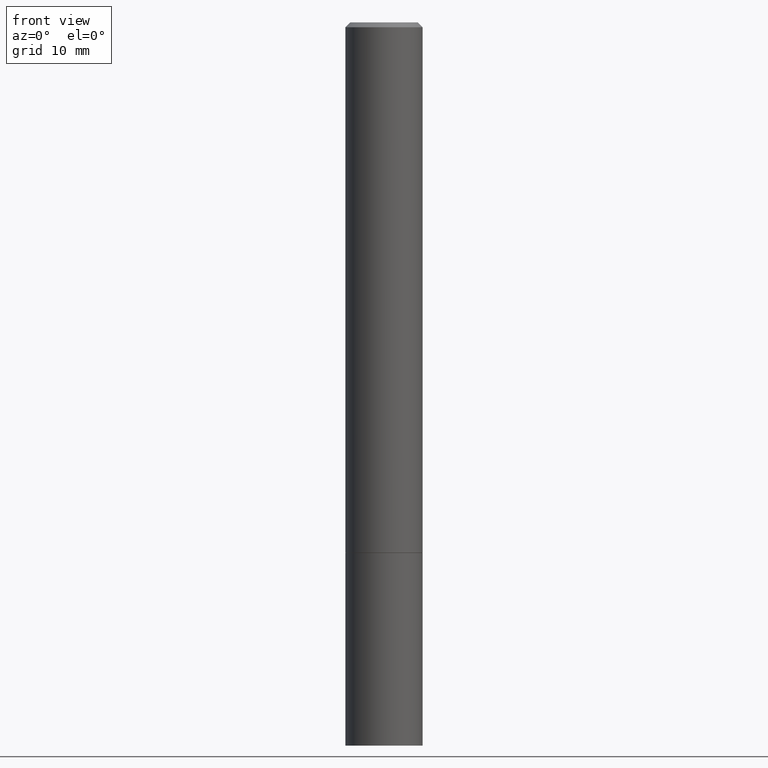
[diagram: clean part render]
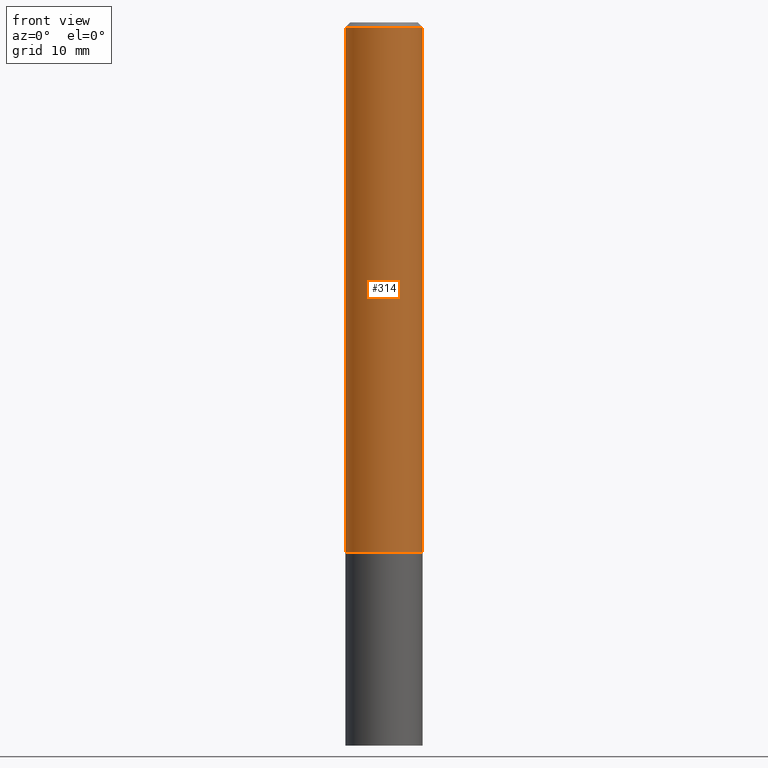
[diagram: same view with one face highlighted and labeled with its STEP entity id]
A machine part, front view. The second image highlights one B-rep face of the part: STEP entity #314.
In plain terms, the highlighted cylindrical surface (partial cylindrical patch) has radius 4.0005 mm, axis along (-0, 0, 1).
Its self-contained STEP definition (entity closure, byte-faithful):
#3 = FACE_OUTER_BOUND ( 'NONE', #129, .T. ) ;
#15 = VERTEX_POINT ( 'NONE', #249 ) ;
#22 = CIRCLE ( 'NONE', #242, 0.1574999999999996958 ) ;
#33 = VERTEX_POINT ( 'NONE', #134 ) ;
#43 = VECTOR ( 'NONE', #358, 39.37007874015748143 ) ;
#53 = CIRCLE ( 'NONE', #253, 0.1574999999999999178 ) ;
#77 = DIRECTION ( 'NONE',  ( -2.445468806185136877E-29, 3.491481338843145188E-15, 1.000000000000000000 ) ) ;
#88 = CYLINDRICAL_SURFACE ( 'NONE', #117, 0.1574999999999998346 ) ;
#89 = DIRECTION ( 'NONE',  ( 1.000000000000000000, -6.982962677686265922E-15, 0.000000000000000000 ) ) ;
#100 = ORIENTED_EDGE ( 'NONE', *, *, #362, .F. ) ;
#105 = LINE ( 'NONE', #247, #43 ) ;
#108 = LINE ( 'NONE', #335, #235 ) ;
#112 = DIRECTION ( 'NONE',  ( -2.445468806185136597E-29, 3.491481338843145583E-15, 1.000000000000000000 ) ) ;
#117 = AXIS2_PLACEMENT_3D ( 'NONE', #288, #112, #173 ) ;
#129 = EDGE_LOOP ( 'NONE', ( #159, #320, #294, #100 ) ) ;
#132 = VERTEX_POINT ( 'NONE', #166 ) ;
#134 = CARTESIAN_POINT ( 'NONE',  ( 0.1574999999999999178, -8.656778831527689529E-15, -2.164399999999999658 ) ) ;
#159 = ORIENTED_EDGE ( 'NONE', *, *, #195, .F. ) ;
#166 = CARTESIAN_POINT ( 'NONE',  ( 0.1574999999999996958, -1.150358061425877105E-15, -0.02000000000000003858 ) ) ;
#173 = DIRECTION ( 'NONE',  ( 1.000000000000000000, -6.982962677686265922E-15, 4.876176775795935793E-29 ) ) ;
#183 = EDGE_CURVE ( 'NONE', #33, #132, #105, .T. ) ;
#191 = CARTESIAN_POINT ( 'NONE',  ( 5.292972684107108742E-29, -7.556962209792102838E-15, -2.164399999999999658 ) ) ;
#195 = EDGE_CURVE ( 'NONE', #244, #15, #108, .T. ) ;
#199 = DIRECTION ( 'NONE',  ( -2.445468806185136597E-29, 3.491481338843145583E-15, 1.000000000000000000 ) ) ;
#212 = EDGE_CURVE ( 'NONE', #244, #33, #53, .T. ) ;
#230 = CARTESIAN_POINT ( 'NONE',  ( -0.1574999999999999178, -2.694291109462323887E-15, -2.164399999999999658 ) ) ;
#235 = VECTOR ( 'NONE', #77, 39.37007874015748143 ) ;
#242 = AXIS2_PLACEMENT_3D ( 'NONE', #259, #283, #89 ) ;
#244 = VERTEX_POINT ( 'NONE', #230 ) ;
#247 = CARTESIAN_POINT ( 'NONE',  ( 0.1574999999999998346, -1.099816621735585705E-15, 7.679978421878591026E-30 ) ) ;
#249 = CARTESIAN_POINT ( 'NONE',  ( -0.1574999999999996958, 1.029986994958721618E-15, -0.02000000000000003858 ) ) ;
#253 = AXIS2_PLACEMENT_3D ( 'NONE', #191, #199, #366 ) ;
#259 = CARTESIAN_POINT ( 'NONE',  ( 4.890937612370282792E-31, -6.982962677686303935E-17, -0.02000000000000003858 ) ) ;
#283 = DIRECTION ( 'NONE',  ( -2.445468806185136597E-29, 3.491481338843145583E-15, 1.000000000000000000 ) ) ;
#288 = CARTESIAN_POINT ( 'NONE',  ( 0.000000000000000000, 0.000000000000000000, 0.000000000000000000 ) ) ;
#294 = ORIENTED_EDGE ( 'NONE', *, *, #183, .T. ) ;
#314 = ADVANCED_FACE ( 'NONE', ( #3 ), #88, .T. ) ;
#320 = ORIENTED_EDGE ( 'NONE', *, *, #212, .T. ) ;
#335 = CARTESIAN_POINT ( 'NONE',  ( -0.1574999999999998346, 1.119104808822156617E-15, -7.747322767151467176E-30 ) ) ;
#358 = DIRECTION ( 'NONE',  ( -2.445468806185136877E-29, 3.491481338843145188E-15, 1.000000000000000000 ) ) ;
#362 = EDGE_CURVE ( 'NONE', #15, #132, #22, .T. ) ;
#366 = DIRECTION ( 'NONE',  ( 1.000000000000000000, -6.982962677686265922E-15, 0.000000000000000000 ) ) ;